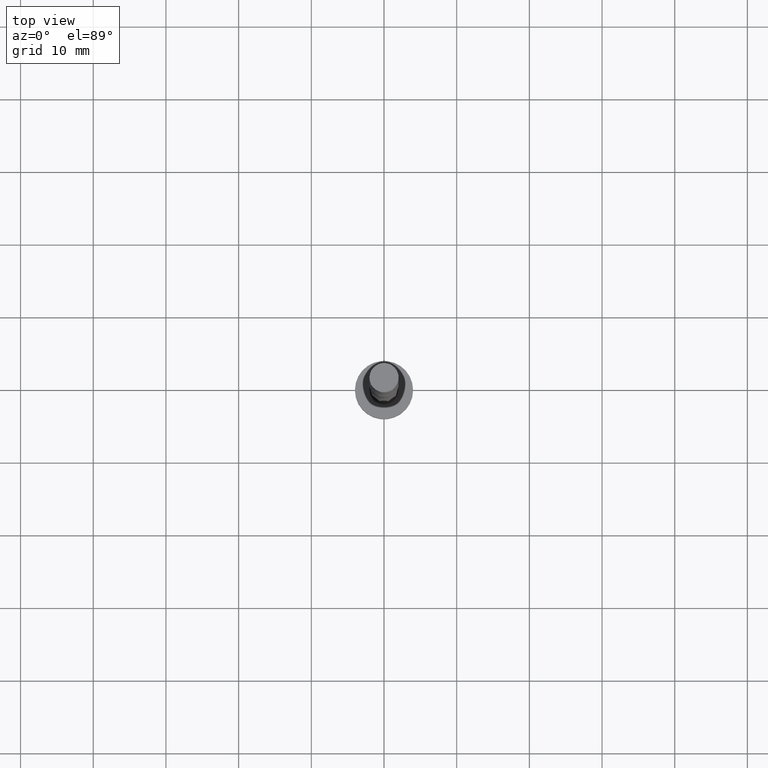
[diagram: clean part render]
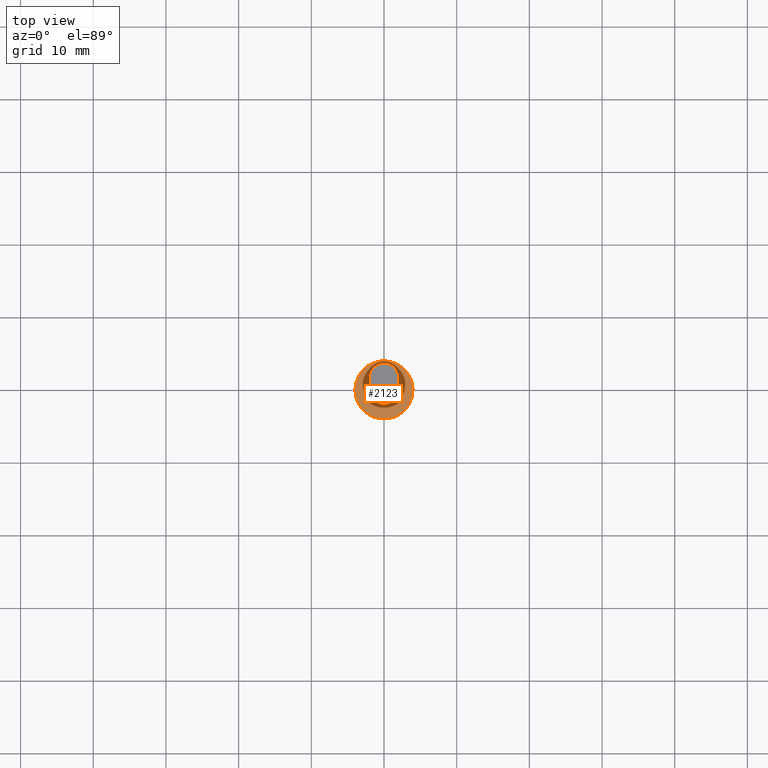
[diagram: same view with one face highlighted and labeled with its STEP entity id]
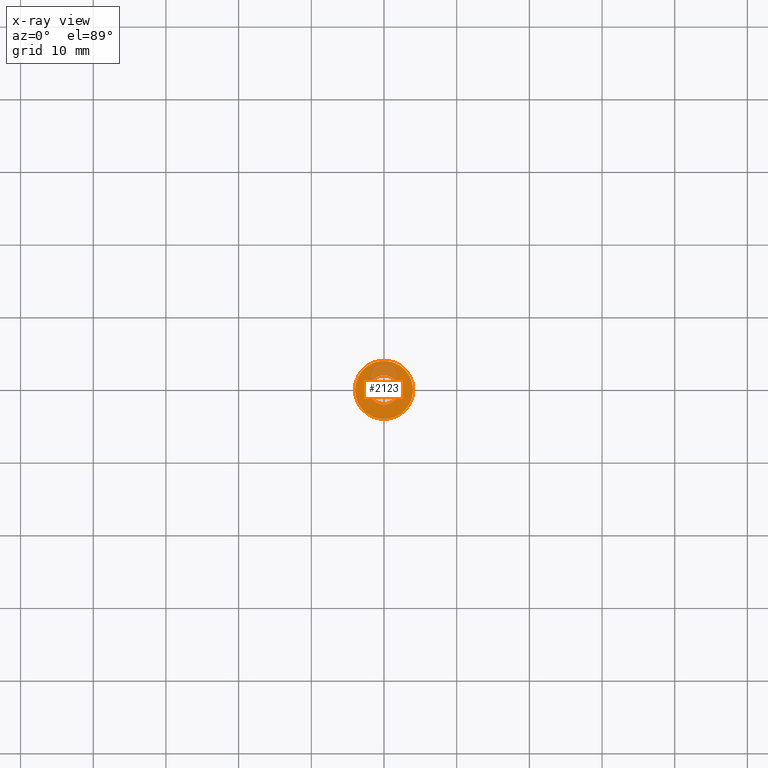
[diagram: x-ray of the same camera — body ghosted, the highlighted face saturated]
A machine part, top view. The second image highlights one B-rep face of the part: STEP entity #2123.
The next image is the same camera in x-ray: the body ghosted, the highlighted face saturated — about 18% of this face is hidden behind the body in this view.
In plain terms, the highlighted planar face has unit normal (0, 0, 1).
Its self-contained STEP definition (entity closure, byte-faithful):
#2 = DIRECTION ( 'NONE',  ( 0.000000000000000000, 0.000000000000000000, 1.000000000000000000 ) ) ;
#72 = VERTEX_POINT ( 'NONE', #307 ) ;
#121 = VERTEX_POINT ( 'NONE', #645 ) ;
#132 = ORIENTED_EDGE ( 'NONE', *, *, #859, .F. ) ;
#138 = CARTESIAN_POINT ( 'NONE',  ( 0.000000000000000000, 0.000000000000000000, 3.000000000000000000 ) ) ;
#176 = DIRECTION ( 'NONE',  ( 1.000000000000000000, 0.000000000000000000, 0.000000000000000000 ) ) ;
#211 = CARTESIAN_POINT ( 'NONE',  ( -1.999863367676941062, 0.02337756667950448633, 3.000000000000006217 ) ) ;
#234 = FACE_OUTER_BOUND ( 'NONE', #768, .T. ) ;
#278 = AXIS2_PLACEMENT_3D ( 'NONE', #1835, #422, #961 ) ;
#307 = CARTESIAN_POINT ( 'NONE',  ( -1.871038463152240539, 0.8119206053580031446, 3.000000000000005773 ) ) ;
#312 = EDGE_CURVE ( 'NONE', #1097, #617, #437, .T. ) ;
#334 = EDGE_CURVE ( 'NONE', #1618, #2110, #1946, .T. ) ;
#343 = CARTESIAN_POINT ( 'NONE',  ( -2.026536823311229529, 0.02706832121775333902, 3.000000000000005773 ) ) ;
#363 = CARTESIAN_POINT ( 'NONE',  ( -4.000000000000000000, 0.000000000000000000, 3.000000000000000000 ) ) ;
#408 = AXIS2_PLACEMENT_3D ( 'NONE', #1027, #528, #176 ) ;
#422 = DIRECTION ( 'NONE',  ( 0.000000000000000000, 0.000000000000000000, 1.000000000000000000 ) ) ;
#437 =( BOUNDED_CURVE ( )  B_SPLINE_CURVE ( 3, ( #1400, #684, #343, #1050 ),
 .UNSPECIFIED., .F., .T. ) 
 B_SPLINE_CURVE_WITH_KNOTS ( ( 4, 4 ),
 ( 0.001210789773286996595, 0.001250326166146768173 ),
 .UNSPECIFIED. ) 
 CURVE ( )  GEOMETRIC_REPRESENTATION_ITEM ( )  RATIONAL_B_SPLINE_CURVE ( ( 0.9066931594007718864, 0.9354013125519862193, 0.9656244178653674570, 0.9973624753409155996 ) ) 
 REPRESENTATION_ITEM ( '' )  );
#450 = CIRCLE ( 'NONE', #278, 4.000000000000000000 ) ;
#453 = VERTEX_POINT ( 'NONE', #363 ) ;
#456 = ORIENTED_EDGE ( 'NONE', *, *, #467, .F. ) ;
#467 = EDGE_CURVE ( 'NONE', #1097, #121, #2045, .T. ) ;
#469 = CARTESIAN_POINT ( 'NONE',  ( -1.832356117975683096, 0.8015429226916571670, 3.000000000000005773 ) ) ;
#528 = DIRECTION ( 'NONE',  ( 0.000000000000000000, 0.000000000000000000, 1.000000000000000000 ) ) ;
#554 = CARTESIAN_POINT ( 'NONE',  ( -1.871038463152240539, 0.8119206053580031446, 3.000000000000005773 ) ) ;
#556 = ORIENTED_EDGE ( 'NONE', *, *, #1465, .T. ) ;
#573 =( BOUNDED_CURVE ( )  B_SPLINE_CURVE ( 3, ( #1415, #1252, #978, #469 ),
 .UNSPECIFIED., .F., .T. ) 
 B_SPLINE_CURVE_WITH_KNOTS ( ( 4, 4 ),
 ( 0.000000000000000000, 3.976887382693163314E-05 ),
 .UNSPECIFIED. ) 
 CURVE ( )  GEOMETRIC_REPRESENTATION_ITEM ( )  RATIONAL_B_SPLINE_CURVE ( ( 0.9973624753409155996, 0.9656244178632387154, 0.9354013125479319068, 0.9066931593949951740 ) ) 
 REPRESENTATION_ITEM ( '' )  );
#602 = EDGE_LOOP ( 'NONE', ( #1413, #1770, #856, #132, #456, #1401 ) ) ;
#617 = VERTEX_POINT ( 'NONE', #1809 ) ;
#645 = CARTESIAN_POINT ( 'NONE',  ( -2.000000000000000000, 0.000000000000000000, 3.000000000000000000 ) ) ;
#651 = DIRECTION ( 'NONE',  ( 1.000000000000000000, 0.000000000000000000, -0.000000000000000000 ) ) ;
#664 =( BOUNDED_CURVE ( )  B_SPLINE_CURVE ( 1, ( #2077, #554 ),
 .UNSPECIFIED., .F., .T. ) 
 B_SPLINE_CURVE_WITH_KNOTS ( ( 2, 2 ),
 ( 0.000000000000000000, 0.0007999999999999994962 ),
 .UNSPECIFIED. ) 
 CURVE ( )  GEOMETRIC_REPRESENTATION_ITEM ( )  RATIONAL_B_SPLINE_CURVE ( ( 0.9973624753409155996, 0.9973624753409155996 ) ) 
 REPRESENTATION_ITEM ( '' )  );
#676 = DIRECTION ( 'NONE',  ( 1.000000000000000000, 0.000000000000000000, 0.000000000000000000 ) ) ;
#684 = CARTESIAN_POINT ( 'NONE',  ( -2.013350504272275021, 0.02489251372876561536, 3.000000000000005773 ) ) ;
#703 = CARTESIAN_POINT ( 'NONE',  ( 0.000000000000000000, 0.000000000000000000, 3.000000000000000000 ) ) ;
#768 = EDGE_LOOP ( 'NONE', ( #556, #1811 ) ) ;
#811 = DIRECTION ( 'NONE',  ( 0.000000000000000000, 0.000000000000000000, 1.000000000000000000 ) ) ;
#839 = CARTESIAN_POINT ( 'NONE',  ( 0.000000000000000000, 0.000000000000000000, 3.000000000000000000 ) ) ;
#856 = ORIENTED_EDGE ( 'NONE', *, *, #334, .F. ) ;
#859 = EDGE_CURVE ( 'NONE', #121, #1618, #1600, .T. ) ;
#877 = CARTESIAN_POINT ( 'NONE',  ( 0.000000000000000000, 0.000000000000000000, 3.000000000000000000 ) ) ;
#961 = DIRECTION ( 'NONE',  ( 1.000000000000000000, 0.000000000000000000, 0.000000000000000000 ) ) ;
#965 = EDGE_CURVE ( 'NONE', #1550, #453, #1341, .T. ) ;
#978 = CARTESIAN_POINT ( 'NONE',  ( -1.845272041180945788, 0.8057114770944389104, 3.000000000000006217 ) ) ;
#1027 = CARTESIAN_POINT ( 'NONE',  ( 0.000000000000000000, 0.000000000000000000, 3.000000000000000000 ) ) ;
#1050 = CARTESIAN_POINT ( 'NONE',  ( -2.039389583432068775, 0.02983499604114161000, 3.000000000000005773 ) ) ;
#1097 = VERTEX_POINT ( 'NONE', #211 ) ;
#1140 = AXIS2_PLACEMENT_3D ( 'NONE', #877, #1551, #1880 ) ;
#1242 = CARTESIAN_POINT ( 'NONE',  ( 4.000000000000000000, 4.898587196589412829E-16, 3.000000000000000000 ) ) ;
#1252 = CARTESIAN_POINT ( 'NONE',  ( -1.858185703030510671, 0.8091539305344230826, 3.000000000000005773 ) ) ;
#1341 = CIRCLE ( 'NONE', #1557, 4.000000000000000000 ) ;
#1381 = DIRECTION ( 'NONE',  ( 0.000000000000000000, 0.000000000000000000, 1.000000000000000000 ) ) ;
#1400 = CARTESIAN_POINT ( 'NONE',  ( -1.999863367676940840, 0.02337756667950448633, 3.000000000000006217 ) ) ;
#1401 = ORIENTED_EDGE ( 'NONE', *, *, #312, .T. ) ;
#1413 = ORIENTED_EDGE ( 'NONE', *, *, #1516, .T. ) ;
#1415 = CARTESIAN_POINT ( 'NONE',  ( -1.871038463152240539, 0.8119206053580031446, 3.000000000000005773 ) ) ;
#1465 = EDGE_CURVE ( 'NONE', #453, #1550, #450, .T. ) ;
#1502 = PLANE ( 'NONE',  #1854 ) ;
#1516 = EDGE_CURVE ( 'NONE', #617, #72, #664, .T. ) ;
#1550 = VERTEX_POINT ( 'NONE', #1242 ) ;
#1551 = DIRECTION ( 'NONE',  ( 0.000000000000000000, 0.000000000000000000, 1.000000000000000000 ) ) ;
#1557 = AXIS2_PLACEMENT_3D ( 'NONE', #839, #2, #676 ) ;
#1562 = DIRECTION ( 'NONE',  ( 1.000000000000000000, 0.000000000000000000, 0.000000000000000000 ) ) ;
#1600 = CIRCLE ( 'NONE', #1140, 2.000000000000000000 ) ;
#1610 = FACE_BOUND ( 'NONE', #602, .T. ) ;
#1618 = VERTEX_POINT ( 'NONE', #1872 ) ;
#1682 = AXIS2_PLACEMENT_3D ( 'NONE', #703, #1381, #1562 ) ;
#1770 = ORIENTED_EDGE ( 'NONE', *, *, #2015, .T. ) ;
#1809 = CARTESIAN_POINT ( 'NONE',  ( -2.039389583432068775, 0.02983499604114161000, 3.000000000000005773 ) ) ;
#1811 = ORIENTED_EDGE ( 'NONE', *, *, #965, .T. ) ;
#1835 = CARTESIAN_POINT ( 'NONE',  ( 0.000000000000000000, 0.000000000000000000, 3.000000000000000000 ) ) ;
#1854 = AXIS2_PLACEMENT_3D ( 'NONE', #138, #811, #651 ) ;
#1872 = CARTESIAN_POINT ( 'NONE',  ( 2.000000000000000000, 2.449293598294705921E-16, 3.000000000000000000 ) ) ;
#1880 = DIRECTION ( 'NONE',  ( 1.000000000000000000, 0.000000000000000000, 0.000000000000000000 ) ) ;
#1942 = CARTESIAN_POINT ( 'NONE',  ( -1.832356117975683096, 0.8015429226916571670, 3.000000000000005773 ) ) ;
#1946 = CIRCLE ( 'NONE', #408, 2.000000000000000000 ) ;
#2015 = EDGE_CURVE ( 'NONE', #72, #2110, #573, .T. ) ;
#2045 = CIRCLE ( 'NONE', #1682, 2.000000000000000000 ) ;
#2077 = CARTESIAN_POINT ( 'NONE',  ( -2.039389583432068775, 0.02983499604114161000, 3.000000000000005773 ) ) ;
#2110 = VERTEX_POINT ( 'NONE', #1942 ) ;
#2123 = ADVANCED_FACE ( 'NONE', ( #234, #1610 ), #1502, .T. ) ;